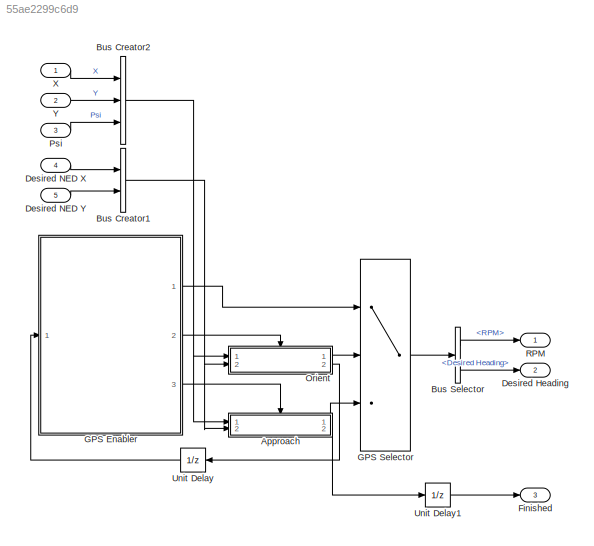
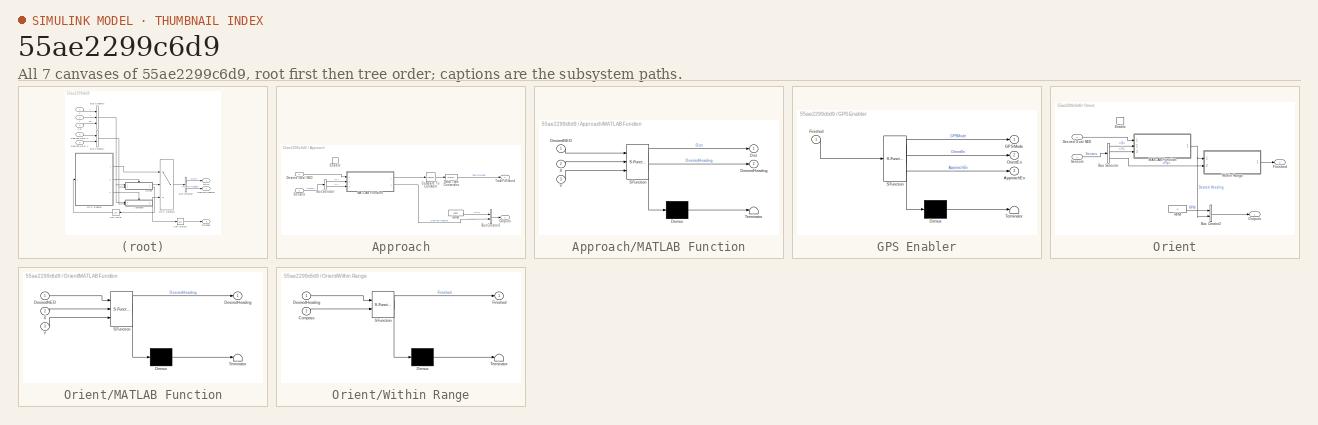
[diagram: thumbnail index - all 7 canvases of the model, root first then tree order]
MODEL slx_55ae2299c6d9
KIND model
BLOCK [SubSystem] Approach
  Ports = [2, 2, 1]
  RequestExecContextInheritance = off
  TreatAsAtomicUnit = on
BLOCK [BusCreator] Approach/Bus Creator2
  DisplayOption = bar
  Inputs = 2
  Ports = [2, 1]
BLOCK [BusSelector] Approach/Bus Selector
  OutputSignals = X,Y
  Ports = [1, 2]
BLOCK [Reference] Approach/Compare To Constant  REF=simulink/Logic and Bit
Operations/Compare
To Constant
  OutDataTypeStr = boolean
  Ports = [1, 1]
  SourceBlock = simulink/Logic and Bit\nOperations/Compare\nTo Constant
  SourceType = Compare To Constant
  ZeroCross = on
  const = 3
  relop = <=
BLOCK [DataTypeConversion] Approach/Data Type Conversion
  OutDataTypeStr = double
  RndMeth = Floor
  SaturateOnIntegerOverflow = off
BLOCK [Inport] Approach/Desired Goal NED
  IconDisplay = Port number
  Port = 2
BLOCK [EnablePort] Approach/Enable
  Ports = []
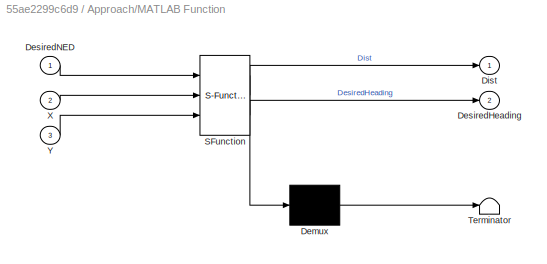
BLOCK [SubSystem] Approach/MATLAB Function
  ErrorFcn = Stateflow.Translate.translate
  PermitHierarchicalResolution = ExplicitOnly
  Ports = [3, 2]
  RequestExecContextInheritance = off
  SFBlockType = MATLAB Function
  TreatAsAtomicUnit = on
BLOCK [Demux] Approach/MATLAB Function/ Demux 
  Outputs = 1
  Ports = [1, 1]
BLOCK [S-Function] Approach/MATLAB Function/ SFunction 
  EnableBusSupport = on
  FunctionName = sf_sfun
  PortCounts = [3 3]
  Ports = [3, 3]
  Tag = Stateflow S-Function NEDnavV1 15
BLOCK [Terminator] Approach/MATLAB Function/ Terminator 
BLOCK [Outport] Approach/MATLAB Function/DesiredHeading
  IconDisplay = Port number
  Port = 2
BLOCK [Inport] Approach/MATLAB Function/DesiredNED
  IconDisplay = Port number
BLOCK [Outport] Approach/MATLAB Function/Dist
  IconDisplay = Port number
BLOCK [Inport] Approach/MATLAB Function/X
  IconDisplay = Port number
  Port = 2
BLOCK [Inport] Approach/MATLAB Function/Y
  IconDisplay = Port number
  Port = 3
BLOCK [Outport] Approach/Outputs
  IconDisplay = Port number
BLOCK [Constant] Approach/RPM
  SampleTime = -1
  Value = 6000
BLOCK [Inport] Approach/Sensors
  IconDisplay = Port number
BLOCK [Outport] Approach/Task Finished
  IconDisplay = Port number
  Port = 2
BLOCK [BusCreator] Bus Creator1
  DisplayOption = bar
  Inputs = 2
  Ports = [2, 1]
BLOCK [BusCreator] Bus Creator2
  DisplayOption = bar
  Inputs = 3
  Ports = [3, 1]
BLOCK [BusSelector] Bus Selector
  OutputSignals = RPM,Desired Heading
  Ports = [1, 2]
BLOCK [Outport] Desired Heading
  IconDisplay = Port number
  Port = 2
BLOCK [Inport] Desired NED X
  IconDisplay = Port number
  Port = 4
BLOCK [Inport] Desired NED Y
  IconDisplay = Port number
  Port = 5
BLOCK [Outport] Finished
  IconDisplay = Port number
  Port = 3
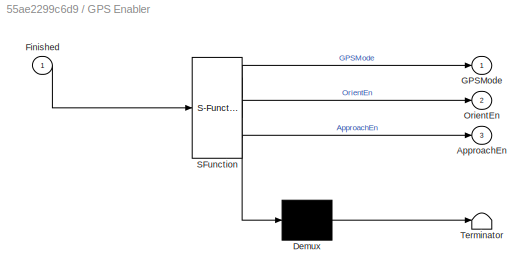
BLOCK [SubSystem] GPS Enabler
  ErrorFcn = Stateflow.Translate.translate
  PermitHierarchicalResolution = ExplicitOnly
  Ports = [1, 3]
  RequestExecContextInheritance = off
  SFBlockType = MATLAB Function
  TreatAsAtomicUnit = on
BLOCK [Demux] GPS Enabler/ Demux 
  Outputs = 1
  Ports = [1, 1]
BLOCK [S-Function] GPS Enabler/ SFunction 
  EnableBusSupport = on
  FunctionName = sf_sfun
  PortCounts = [1 4]
  Ports = [1, 4]
  Tag = Stateflow S-Function NEDnavV1 13
BLOCK [Terminator] GPS Enabler/ Terminator 
BLOCK [Outport] GPS Enabler/ApproachEn
  IconDisplay = Port number
  Port = 3
BLOCK [Inport] GPS Enabler/Finished
  IconDisplay = Port number
BLOCK [Outport] GPS Enabler/GPSMode
  IconDisplay = Port number
BLOCK [Outport] GPS Enabler/OrientEn
  IconDisplay = Port number
  Port = 2
BLOCK [MultiPortSwitch] GPS Selector
  InputSameDT = off
  Inputs = 2
  Ports = [3, 1]
  SaturateOnIntegerOverflow = off
BLOCK [SubSystem] Orient
  Ports = [2, 2, 1]
  RequestExecContextInheritance = off
  TreatAsAtomicUnit = on
BLOCK [BusCreator] Orient/Bus Creator2
  DisplayOption = bar
  Inputs = 2
  Ports = [2, 1]
BLOCK [BusSelector] Orient/Bus Selector
  OutputSignals = X,Y,Psi
  Ports = [1, 3]
BLOCK [Inport] Orient/Desired Goal NED
  IconDisplay = Port number
  Port = 2
BLOCK [EnablePort] Orient/Enable
  Ports = []
BLOCK [Outport] Orient/Finished
  IconDisplay = Port number
  Port = 2
BLOCK [SubSystem] Orient/MATLAB Function
  ErrorFcn = Stateflow.Translate.translate
  PermitHierarchicalResolution = ExplicitOnly
  Ports = [3, 1]
  RequestExecContextInheritance = off
  SFBlockType = MATLAB Function
  TreatAsAtomicUnit = on
BLOCK [Demux] Orient/MATLAB Function/ Demux 
  Outputs = 1
  Ports = [1, 1]
BLOCK [S-Function] Orient/MATLAB Function/ SFunction 
  EnableBusSupport = on
  FunctionName = sf_sfun
  PortCounts = [3 2]
  Ports = [3, 2]
  Tag = Stateflow S-Function NEDnavV1 16
BLOCK [Terminator] Orient/MATLAB Function/ Terminator 
BLOCK [Outport] Orient/MATLAB Function/DesiredHeading
  IconDisplay = Port number
BLOCK [Inport] Orient/MATLAB Function/DesiredNED
  IconDisplay = Port number
BLOCK [Inport] Orient/MATLAB Function/X
  IconDisplay = Port number
  Port = 2
BLOCK [Inport] Orient/MATLAB Function/Y
  IconDisplay = Port number
  Port = 3
BLOCK [Outport] Orient/Outputs
  IconDisplay = Port number
BLOCK [Constant] Orient/RPM
  SampleTime = -1
  Value = 0
BLOCK [Inport] Orient/Sensors
  IconDisplay = Port number
BLOCK [SubSystem] Orient/Within Range
  ErrorFcn = Stateflow.Translate.translate
  PermitHierarchicalResolution = ExplicitOnly
  Ports = [2, 1]
  RequestExecContextInheritance = off
  SFBlockType = MATLAB Function
  TreatAsAtomicUnit = on
BLOCK [Demux] Orient/Within Range/ Demux 
  Outputs = 1
  Ports = [1, 1]
BLOCK [S-Function] Orient/Within Range/ SFunction 
  EnableBusSupport = on
  FunctionName = sf_sfun
  PortCounts = [2 2]
  Ports = [2, 2]
  Tag = Stateflow S-Function NEDnavV1 17
BLOCK [Terminator] Orient/Within Range/ Terminator 
BLOCK [Inport] Orient/Within Range/Compass
  IconDisplay = Port number
  Port = 2
BLOCK [Inport] Orient/Within Range/DesiredHeading
  IconDisplay = Port number
BLOCK [Outport] Orient/Within Range/Finished
  IconDisplay = Port number
BLOCK [Inport] Psi
  IconDisplay = Port number
  Port = 3
BLOCK [Outport] RPM
  IconDisplay = Port number
BLOCK [UnitDelay] Unit Delay
  InputProcessing = Elements as channels (sample based)
  SampleTime = -1
BLOCK [UnitDelay] Unit Delay1
  InputProcessing = Elements as channels (sample based)
  SampleTime = -1
BLOCK [Inport] X
  IconDisplay = Port number
BLOCK [Inport] Y
  IconDisplay = Port number
  Port = 2
LINE Approach/Bus Creator2:1 -> Approach/Outputs:1
LINE Approach/Bus Selector:1 -> Approach/MATLAB Function:2
LINE Approach/Bus Selector:2 -> Approach/MATLAB Function:3
LINE Approach/Compare To Constant:1 -> Approach/Data Type Conversion:1
LINE Approach/Data Type Conversion:1 -> Approach/Task Finished:1
LINE Approach/Desired Goal NED:1 -> Approach/MATLAB Function:1
LINE Approach/MATLAB Function:1 -> Approach/Compare To Constant:1
LINE Approach/MATLAB Function:2 -> Approach/Bus Creator2:2
LINE Approach/RPM:1 -> Approach/Bus Creator2:1
LINE Approach/Sensors:1 -> Approach/Bus Selector:1
LINE Approach:1 -> GPS Selector:3
LINE Approach:2 -> Unit Delay1:1
NET Bus Creator1:1 -> Approach:2, Orient:2
NET Bus Creator2:1 -> Approach:1, Orient:1
LINE Bus Selector:1 -> RPM:1
LINE Bus Selector:2 -> Desired Heading:1
LINE Desired NED X:1 -> Bus Creator1:1
LINE Desired NED Y:1 -> Bus Creator1:2
LINE GPS Enabler:1 -> GPS Selector:1
LINE GPS Enabler:2 -> Orient:enable
LINE GPS Enabler:3 -> Approach:enable
LINE GPS Selector:1 -> Bus Selector:1
LINE Orient/Bus Creator2:1 -> Orient/Outputs:1
LINE Orient/Bus Selector:1 -> Orient/MATLAB Function:2
LINE Orient/Bus Selector:2 -> Orient/MATLAB Function:3
LINE Orient/Bus Selector:3 -> Orient/Within Range:2
LINE Orient/Desired Goal NED:1 -> Orient/MATLAB Function:1
NET Orient/MATLAB Function:1 -> Orient/Bus Creator2:2, Orient/Within Range:1
LINE Orient/RPM:1 -> Orient/Bus Creator2:1
LINE Orient/Sensors:1 -> Orient/Bus Selector:1
LINE Orient/Within Range:1 -> Orient/Finished:1
LINE Orient:1 -> GPS Selector:2
LINE Orient:2 -> Unit Delay:1
LINE Psi:1 -> Bus Creator2:3
LINE Unit Delay1:1 -> Finished:1
LINE Unit Delay:1 -> GPS Enabler:1
LINE X:1 -> Bus Creator2:1
LINE Y:1 -> Bus Creator2:2
note: NET lines group one-source signal fan-out (src -> all destinations, sorted); 1:1 wires keep LINE
